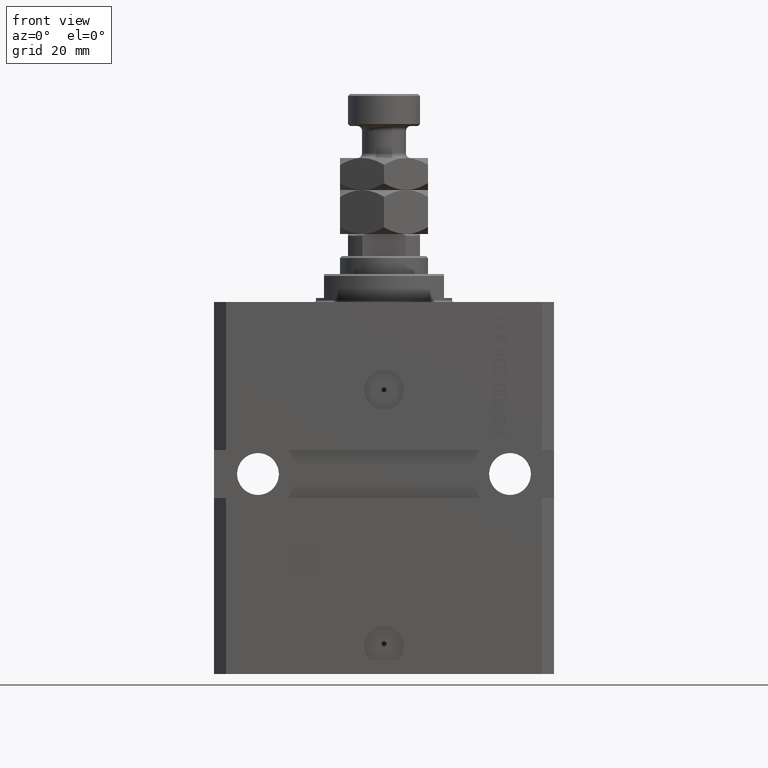
[diagram: clean part render]
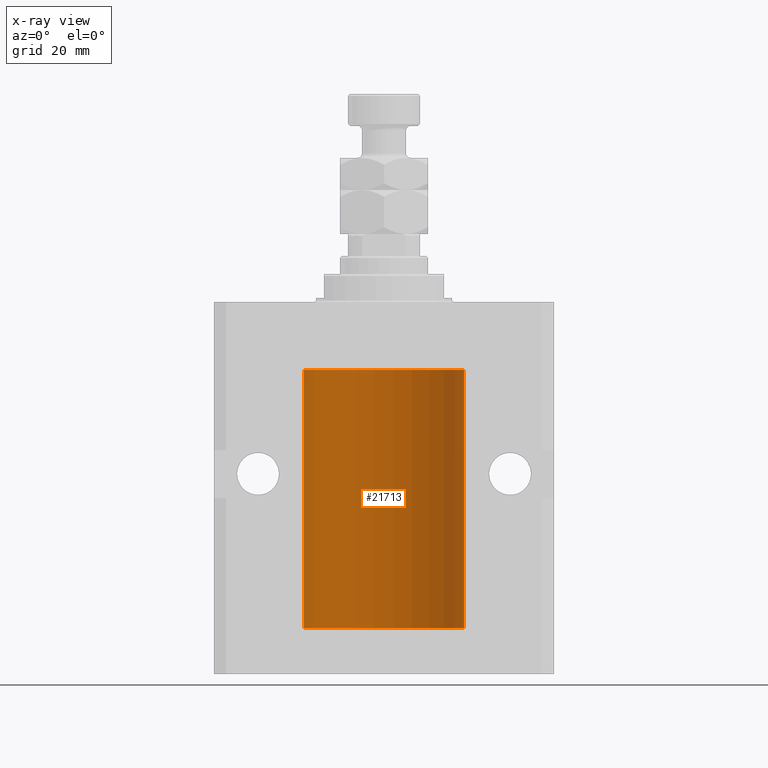
[diagram: x-ray — body ghosted, one internal face saturated and labeled with its STEP entity id]
A machine part, front view, then the same camera in x-ray: the body is ghosted and one INTERNAL B-rep face — a face not visible from any outside direction — is saturated and labeled: STEP entity #21713.
In plain terms, the highlighted cylindrical surface (partial cylindrical patch) has radius 20 mm, axis along (0, 0, 1).
Its self-contained STEP definition (entity closure, byte-faithful):
#1337 = EDGE_CURVE ( 'NONE', #43239, #9197, #47269, .T. ) ;
#2010 = AXIS2_PLACEMENT_3D ( 'NONE', #26718, #41915, #7797 ) ;
#2608 = CARTESIAN_POINT ( 'NONE',  ( -19.99999999999999645, 0.08259581631026780002, -23.37500000000000000 ) ) ;
#2610 = ORIENTED_EDGE ( 'NONE', *, *, #1337, .F. ) ;
#2865 = CARTESIAN_POINT ( 'NONE',  ( -20.00000000000010303, 3.580159286679549072E-13, -79.62500000000332534 ) ) ;
#2986 = CARTESIAN_POINT ( 'NONE',  ( -20.00000000000000000, 2.449293598294706513E-15, -17.00000000000000000 ) ) ;
#3780 = VECTOR ( 'NONE', #25229, 1000.000000000000000 ) ;
#4809 = CARTESIAN_POINT ( 'NONE',  ( -20.00000000000000000, -1.124177324826063808E-14, -78.37500000000000000 ) ) ;
#4997 = LINE ( 'NONE', #15744, #31601 ) ;
#5087 = DIRECTION ( 'NONE',  ( -0.000000000000000000, -0.000000000000000000, 1.000000000000000000 ) ) ;
#5772 = CARTESIAN_POINT ( 'NONE',  ( -20.00000000000000000, -2.867584836844214272E-15, -23.37500000000000000 ) ) ;
#5836 = CARTESIAN_POINT ( 'NONE',  ( -19.99766197842594906, 0.3150331617867667688, -23.45402070102505476 ) ) ;
#6839 = VECTOR ( 'NONE', #5087, 1000.000000000000000 ) ;
#6979 = EDGE_CURVE ( 'NONE', #48276, #9197, #8506, .T. ) ;
#7037 = ORIENTED_EDGE ( 'NONE', *, *, #45539, .F. ) ;
#7385 = DIRECTION ( 'NONE',  ( 1.000000000000000000, 0.000000000000000000, 0.000000000000000000 ) ) ;
#7797 = DIRECTION ( 'NONE',  ( 1.000000000000000000, 0.000000000000000000, 0.000000000000000000 ) ) ;
#8506 = B_SPLINE_CURVE_WITH_KNOTS ( 'NONE', 3,
 ( #32009, #2608, #47182, #5836, #35759, #31778, #47433, #25024, #13328, #47686, #28274, #13808 ),
 .UNSPECIFIED., .F., .F.,
 ( 4, 2, 2, 2, 2, 4 ),
 ( 5.848927291235706941E-19, 0.0002442693137305304075, 0.0004885386274610601645, 0.0009770772549221123059, 0.001465615882383164339, 0.001954154509844215938 ),
 .UNSPECIFIED. ) ;
#9197 = VERTEX_POINT ( 'NONE', #17087 ) ;
#9546 = EDGE_CURVE ( 'NONE', #48521, #36986, #42571, .T. ) ;
#9700 = CARTESIAN_POINT ( 'NONE',  ( -20.00000000000000000, 2.449293598294706513E-15, -81.59999999999999432 ) ) ;
#10091 = CARTESIAN_POINT ( 'NONE',  ( -19.99638934703457238, 0.3843678041337651452, -78.50046362978099523 ) ) ;
#11122 = CYLINDRICAL_SURFACE ( 'NONE', #18605, 20.00000000000000000 ) ;
#12160 = CARTESIAN_POINT ( 'NONE',  ( 20.00000000000000000, 0.000000000000000000, -17.00000000000000000 ) ) ;
#13328 = CARTESIAN_POINT ( 'NONE',  ( -19.99253506710754991, 0.5587120480776751608, -24.32511620830248589 ) ) ;
#13656 = EDGE_CURVE ( 'NONE', #48521, #42627, #4997, .T. ) ;
#13753 = CARTESIAN_POINT ( 'NONE',  ( -20.00000000000000000, 2.449293598294706513E-15, -81.59999999999999432 ) ) ;
#13808 = CARTESIAN_POINT ( 'NONE',  ( -20.00000000000010303, 3.580159278407742946E-13, -24.62500000000332889 ) ) ;
#14329 = CARTESIAN_POINT ( 'NONE',  ( -19.99947377218718003, 0.1636439183262797525, -78.39126364004653169 ) ) ;
#15121 = ORIENTED_EDGE ( 'NONE', *, *, #13656, .T. ) ;
#15337 = DIRECTION ( 'NONE',  ( 1.000000000000000000, 0.000000000000000000, 0.000000000000000000 ) ) ;
#15744 = CARTESIAN_POINT ( 'NONE',  ( 20.00000000000000000, 0.000000000000000000, -81.59999999999999432 ) ) ;
#15983 = DIRECTION ( 'NONE',  ( -0.000000000000000000, -0.000000000000000000, 1.000000000000000000 ) ) ;
#17087 = CARTESIAN_POINT ( 'NONE',  ( -20.00000000000010303, 3.580159278407742946E-13, -24.62500000000332889 ) ) ;
#18605 = AXIS2_PLACEMENT_3D ( 'NONE', #26318, #41513, #7385 ) ;
#19941 = CARTESIAN_POINT ( 'NONE',  ( -20.00000000000010303, 3.580159286679549072E-13, -79.62500000000332534 ) ) ;
#21713 = ADVANCED_FACE ( 'NONE', ( #44989 ), #11122, .F. ) ;
#22042 = CARTESIAN_POINT ( 'NONE',  ( -19.99023380173166231, 0.6249420416828449509, -78.83670793056396064 ) ) ;
#24034 = LINE ( 'NONE', #43184, #6839 ) ;
#25024 = CARTESIAN_POINT ( 'NONE',  ( -19.99023018003212471, 0.6250578794725500931, -24.16284809704970371 ) ) ;
#25229 = DIRECTION ( 'NONE',  ( -0.000000000000000000, -0.000000000000000000, 1.000000000000000000 ) ) ;
#25290 = CARTESIAN_POINT ( 'NONE',  ( -19.99256581701871838, 0.5573276956901996870, -78.67348565770949165 ) ) ;
#26297 = VERTEX_POINT ( 'NONE', #19941 ) ;
#26318 = CARTESIAN_POINT ( 'NONE',  ( 0.000000000000000000, 0.000000000000000000, -81.59999999999999432 ) ) ;
#26718 = CARTESIAN_POINT ( 'NONE',  ( 0.000000000000000000, 0.000000000000000000, -81.59999999999999432 ) ) ;
#27238 = ORIENTED_EDGE ( 'NONE', *, *, #6979, .T. ) ;
#28274 = CARTESIAN_POINT ( 'NONE',  ( -20.00000000000000000, 0.1631688615953320320, -24.62499999999985434 ) ) ;
#29524 = CARTESIAN_POINT ( 'NONE',  ( -19.99023018003212471, 0.6250578794725522025, -79.16284809704971792 ) ) ;
#30694 = EDGE_LOOP ( 'NONE', ( #7037, #45778, #15121, #34679, #36440, #27238, #2610, #40396 ) ) ;
#31601 = VECTOR ( 'NONE', #15983, 1000.000000000000000 ) ;
#31778 = CARTESIAN_POINT ( 'NONE',  ( -19.99256581701871482, 0.5573276956902001311, -23.67348565770948809 ) ) ;
#32009 = CARTESIAN_POINT ( 'NONE',  ( -20.00000000000000000, -2.867584836844214272E-15, -23.37500000000000000 ) ) ;
#32703 = LINE ( 'NONE', #13753, #3780 ) ;
#33503 = CARTESIAN_POINT ( 'NONE',  ( -19.99769349528941831, 0.3253804398728615266, -79.55855820727680339 ) ) ;
#33540 = DIRECTION ( 'NONE',  ( 0.000000000000000000, 0.000000000000000000, 1.000000000000000000 ) ) ;
#33739 = CARTESIAN_POINT ( 'NONE',  ( -19.99999999999999289, 0.08259581631026131909, -78.37499999999998579 ) ) ;
#34679 = ORIENTED_EDGE ( 'NONE', *, *, #46271, .T. ) ;
#34737 = CIRCLE ( 'NONE', #37882, 20.00000000000000000 ) ;
#35602 = DIRECTION ( 'NONE',  ( -0.000000000000000000, -0.000000000000000000, 1.000000000000000000 ) ) ;
#35642 = CARTESIAN_POINT ( 'NONE',  ( 20.00000000000000000, 0.000000000000000000, -81.59999999999999432 ) ) ;
#35759 = CARTESIAN_POINT ( 'NONE',  ( -19.99638934703457593, 0.3843678041337688644, -23.50046362978100944 ) ) ;
#36440 = ORIENTED_EDGE ( 'NONE', *, *, #49143, .F. ) ;
#36743 = CARTESIAN_POINT ( 'NONE',  ( -19.99766197842594551, 0.3150331617867603295, -78.45402070102504410 ) ) ;
#36986 = VERTEX_POINT ( 'NONE', #9700 ) ;
#37882 = AXIS2_PLACEMENT_3D ( 'NONE', #41739, #33540, #15337 ) ;
#38409 = EDGE_CURVE ( 'NONE', #43239, #26297, #42853, .T. ) ;
#40022 = VECTOR ( 'NONE', #35602, 1000.000000000000000 ) ;
#40396 = ORIENTED_EDGE ( 'NONE', *, *, #38409, .T. ) ;
#41513 = DIRECTION ( 'NONE',  ( -0.000000000000000000, -0.000000000000000000, 1.000000000000000000 ) ) ;
#41739 = CARTESIAN_POINT ( 'NONE',  ( 0.000000000000000000, 0.000000000000000000, -17.00000000000000000 ) ) ;
#41915 = DIRECTION ( 'NONE',  ( 0.000000000000000000, 0.000000000000000000, 1.000000000000000000 ) ) ;
#42571 = CIRCLE ( 'NONE', #2010, 20.00000000000000000 ) ;
#42627 = VERTEX_POINT ( 'NONE', #12160 ) ;
#42853 = B_SPLINE_CURVE_WITH_KNOTS ( 'NONE', 3,
 ( #48911, #33739, #14329, #36743, #10091, #25290, #22042, #29524, #43940, #33503, #48668, #2865 ),
 .UNSPECIFIED., .F., .F.,
 ( 4, 2, 2, 2, 2, 4 ),
 ( 1.522880481566060999E-18, 0.0002442693137305179392, 0.0004885386274610343605, 0.0009770772549220966934, 0.001465615882383158918, 0.001954154509844221576 ),
 .UNSPECIFIED. ) ;
#43184 = CARTESIAN_POINT ( 'NONE',  ( -20.00000000000000000, 2.449293598294706513E-15, -81.59999999999999432 ) ) ;
#43239 = VERTEX_POINT ( 'NONE', #4809 ) ;
#43940 = CARTESIAN_POINT ( 'NONE',  ( -19.99253506710754991, 0.5587120480776742726, -79.32511620830248944 ) ) ;
#44027 = CARTESIAN_POINT ( 'NONE',  ( -20.00000000000000000, 2.449293598294706513E-15, -81.59999999999999432 ) ) ;
#44989 = FACE_OUTER_BOUND ( 'NONE', #30694, .T. ) ;
#45539 = EDGE_CURVE ( 'NONE', #36986, #26297, #24034, .T. ) ;
#45778 = ORIENTED_EDGE ( 'NONE', *, *, #9546, .F. ) ;
#46271 = EDGE_CURVE ( 'NONE', #42627, #47343, #34737, .T. ) ;
#47182 = CARTESIAN_POINT ( 'NONE',  ( -19.99947377218718714, 0.1636439183262877461, -23.39126364004656011 ) ) ;
#47269 = LINE ( 'NONE', #44027, #40022 ) ;
#47343 = VERTEX_POINT ( 'NONE', #2986 ) ;
#47433 = CARTESIAN_POINT ( 'NONE',  ( -19.99023380173166231, 0.6249420416828462832, -23.83670793056396064 ) ) ;
#47686 = CARTESIAN_POINT ( 'NONE',  ( -19.99769349528941120, 0.3253804398728645242, -24.55855820727680339 ) ) ;
#48276 = VERTEX_POINT ( 'NONE', #5772 ) ;
#48521 = VERTEX_POINT ( 'NONE', #35642 ) ;
#48668 = CARTESIAN_POINT ( 'NONE',  ( -20.00000000000000355, 0.1631688615953343080, -79.62499999999984368 ) ) ;
#48911 = CARTESIAN_POINT ( 'NONE',  ( -20.00000000000000000, -1.124177324826063808E-14, -78.37500000000000000 ) ) ;
#49143 = EDGE_CURVE ( 'NONE', #48276, #47343, #32703, .T. ) ;